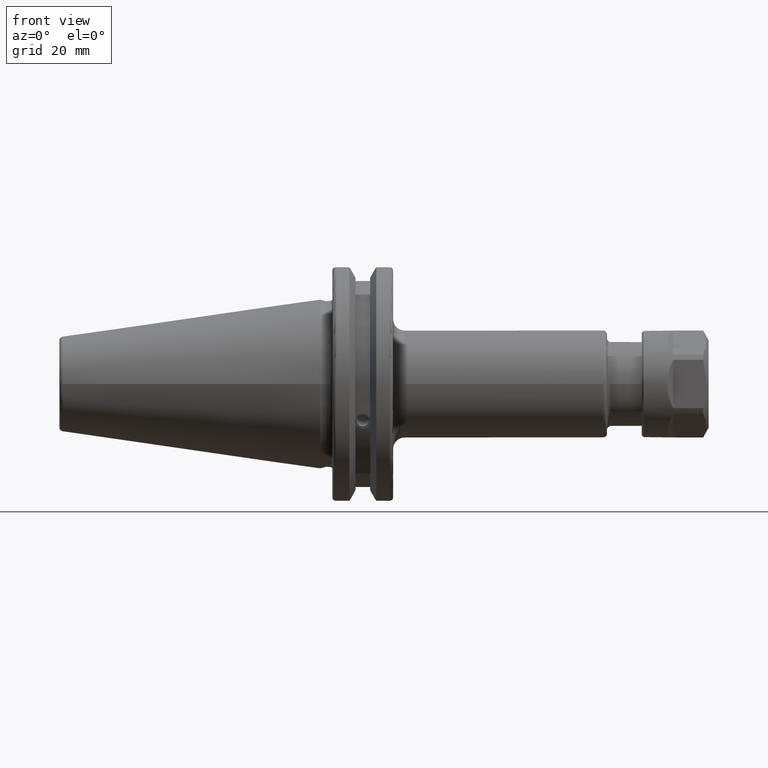
[diagram: clean part render]
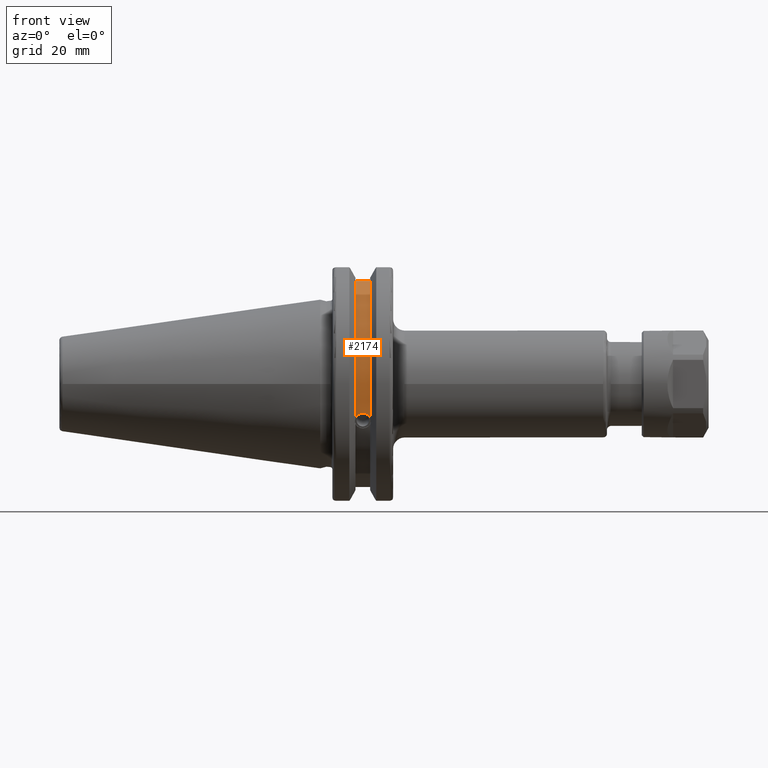
[diagram: same view with one face highlighted and labeled with its STEP entity id]
A machine part, front view. The second image highlights one B-rep face of the part: STEP entity #2174.
In plain terms, the highlighted cylindrical surface (partial cylindrical patch) has radius 28.15 mm, axis along (1, 0, 0).
Its self-contained STEP definition (entity closure, byte-faithful):
#176=B_SPLINE_CURVE_WITH_KNOTS('',3,(#3440,#3441,#3442,#3443,#3444,#3445,
#3446,#3447,#3448,#3449,#3450,#3451,#3452,#3453),.UNSPECIFIED.,.F.,.F.,
(4,2,2,2,2,2,4),(0.401639126382403,0.474814416953736,0.553950208498303,
0.63308600004287,0.712221791587437,0.791357583132004,0.864532873703336),
 .UNSPECIFIED.);
#301=FACE_OUTER_BOUND('',#440,.T.);
#440=EDGE_LOOP('',(#1842,#1843,#1844,#1845));
#560=LINE('',#3853,#694);
#694=VECTOR('',#2894,10.);
#837=CIRCLE('',#2467,28.15);
#838=CIRCLE('',#2468,28.15);
#922=VERTEX_POINT('',#3437);
#923=VERTEX_POINT('',#3439);
#1006=VERTEX_POINT('',#3850);
#1007=VERTEX_POINT('',#3852);
#1153=EDGE_CURVE('',#923,#922,#176,.T.);
#1268=EDGE_CURVE('',#1007,#1006,#560,.T.);
#1319=EDGE_CURVE('',#1007,#922,#837,.T.);
#1320=EDGE_CURVE('',#1006,#923,#838,.T.);
#1842=ORIENTED_EDGE('',*,*,#1153,.T.);
#1843=ORIENTED_EDGE('',*,*,#1319,.F.);
#1844=ORIENTED_EDGE('',*,*,#1268,.T.);
#1845=ORIENTED_EDGE('',*,*,#1320,.T.);
#2083=CYLINDRICAL_SURFACE('',#2466,28.15);
#2174=ADVANCED_FACE('',(#301),#2083,.T.);
#2466=AXIS2_PLACEMENT_3D('',#4001,#3002,#3003);
#2467=AXIS2_PLACEMENT_3D('',#4002,#3004,#3005);
#2468=AXIS2_PLACEMENT_3D('',#4003,#3006,#3007);
#2894=DIRECTION('',(-1.,0.,0.));
#3002=DIRECTION('center_axis',(1.,0.,0.));
#3003=DIRECTION('ref_axis',(0.,-0.887654187951484,0.46051063246378));
#3004=DIRECTION('center_axis',(1.,0.,0.));
#3005=DIRECTION('ref_axis',(0.,0.,-1.));
#3006=DIRECTION('center_axis',(1.,0.,0.));
#3007=DIRECTION('ref_axis',(0.,0.,-1.));
#3437=CARTESIAN_POINT('',(13.0491,-26.734714844398,-8.81348524641211));
#3439=CARTESIAN_POINT('',(9.2191,-26.734714844398,-8.81348524641212));
#3440=CARTESIAN_POINT('Ctrl Pts',(9.2191,-26.734714844398,-8.81348524641212));
#3441=CARTESIAN_POINT('Ctrl Pts',(9.32533057097183,-26.8086519721597,-8.58920529678291));
#3442=CARTESIAN_POINT('Ctrl Pts',(9.47682013770509,-26.8729987454904,-8.38416529997369));
#3443=CARTESIAN_POINT('Ctrl Pts',(9.83557062657411,-26.9778908791383,-8.04056861831091));
#3444=CARTESIAN_POINT('Ctrl Pts',(10.0716450112988,-27.0233016799732,-7.88512567185902));
#3445=CARTESIAN_POINT('Ctrl Pts',(10.5890125426388,-27.0826966800569,-7.6786444840004));
#3446=CARTESIAN_POINT('Ctrl Pts',(10.8703140281848,-27.0968804077294,-7.62768458768512));
#3447=CARTESIAN_POINT('Ctrl Pts',(11.3978859718152,-27.0968804077294,-7.62768458768512));
#3448=CARTESIAN_POINT('Ctrl Pts',(11.6791874573612,-27.0826966800569,-7.6786444840004));
#3449=CARTESIAN_POINT('Ctrl Pts',(12.1965549887012,-27.0233016799732,-7.88512567185902));
#3450=CARTESIAN_POINT('Ctrl Pts',(12.4326293734259,-26.9778908791383,-8.04056861831091));
#3451=CARTESIAN_POINT('Ctrl Pts',(12.7913798622949,-26.8729987454904,-8.38416529997369));
#3452=CARTESIAN_POINT('Ctrl Pts',(12.9428694290282,-26.8086519721597,-8.5892052967829));
#3453=CARTESIAN_POINT('Ctrl Pts',(13.0491,-26.734714844398,-8.81348524641211));
#3850=CARTESIAN_POINT('',(9.2191,-8.19,26.932255754021));
#3852=CARTESIAN_POINT('',(13.0491,-8.19,26.932255754021));
#3853=CARTESIAN_POINT('',(11.1341,-8.19,26.932255754021));
#4001=CARTESIAN_POINT('Origin',(11.1341,0.,0.));
#4002=CARTESIAN_POINT('Origin',(13.0491,0.,0.));
#4003=CARTESIAN_POINT('Origin',(9.2191,0.,0.));